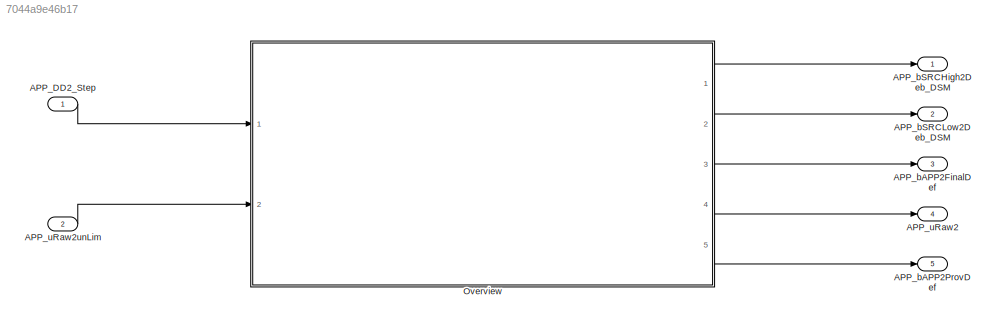
MODEL slx_7044a9e46b17
KIND model
CONFIG AbsTol = auto
CONFIG EnableMultiTasking = off
CONFIG FixedStep = 0.001
CONFIG MaxStep = auto
CONFIG MinStep = auto
CONFIG RelTol = 1e-3
CONFIG SampleTimeConstraint = Unconstrained
CONFIG SolverName = FixedStepDiscrete
CONFIG StartTime = 0.0
CONFIG StopTime = Inf
WORKSPACE source: mxarray member
WORKSPACE APP_DD2_DT = 10
BLOCK [Inport] APP_DD2_Step
  OutputFunctionCall = on
BLOCK [Outport] APP_bAPP2FinalDef
  Description = Status Sensor 2 of the acceleration pedal finally defect
  OutDataTypeStr = boolean
  OutMax = 1
  OutMin = 0
  Port = 3
  PortDimensions = [1 1]
BLOCK [Outport] APP_bAPP2ProvDef
  Description = Status Sensor 2 of the acceleration pedal temporary defect
  OutDataTypeStr = boolean
  OutMax = 1
  OutMin = 0
  Port = 5
  PortDimensions = [1 1]
BLOCK [Outport] APP_bSRCHigh2Deb_DSM
  Description = Status debounced SRC-High error Sensor 2
  OutDataTypeStr = boolean
  OutMax = 1
  OutMin = 0
  PortDimensions = [1 1]
BLOCK [Outport] APP_bSRCLow2Deb_DSM
  Description = Status debounced SRC-Low error Sensor 2
  OutDataTypeStr = boolean
  OutMax = 1
  OutMin = 0
  Port = 2
  PortDimensions = [1 1]
BLOCK [Outport] APP_uRaw2
  Description = Acceleration Pedal Position E
  OutDataTypeStr = Volt_mV1
  OutMax = 5000
  OutMin = 0
  Port = 4
  PortDimensions = [1 1]
  Unit = mv
BLOCK [Inport] APP_uRaw2unLim
  Description = Acceleration pedal sensor 2 unlimited raw value
  OutDataTypeStr = Volt_mV1
  OutMax = 5000
  OutMin = 0
  Port = 2
  PortDimensions = [1 1]
  Unit = mv
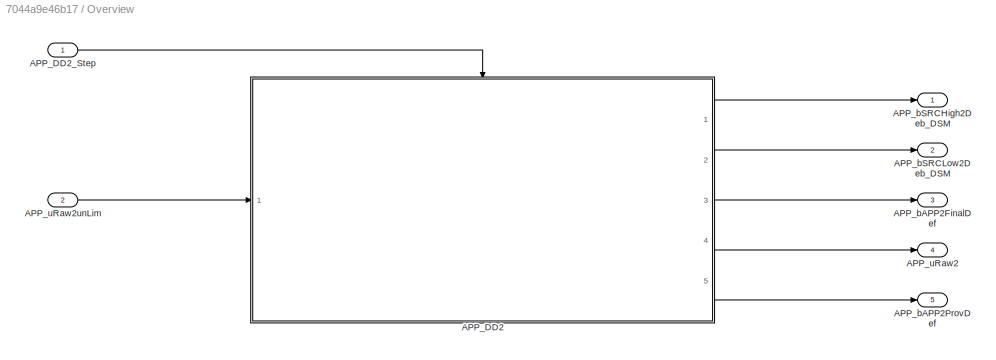
BLOCK [SubSystem] Overview
  Ports = [2, 5]
  RequestExecContextInheritance = off
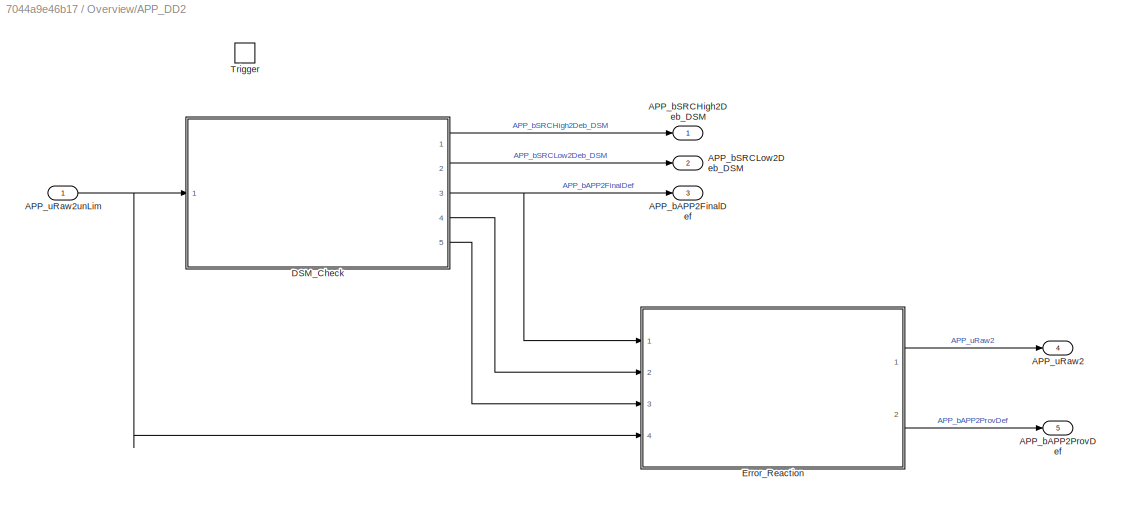
BLOCK [SubSystem] Overview/APP_DD2
  Ports = [1, 5, 0, 1]
  RequestExecContextInheritance = off
BLOCK [Outport] Overview/APP_DD2/APP_bAPP2FinalDef
  Port = 3
  VectorParamsAs1DForOutWhenUnconnected = off
BLOCK [Outport] Overview/APP_DD2/APP_bAPP2ProvDef
  Port = 5
  VectorParamsAs1DForOutWhenUnconnected = off
BLOCK [Outport] Overview/APP_DD2/APP_bSRCHigh2Deb_DSM
  VectorParamsAs1DForOutWhenUnconnected = off
BLOCK [Outport] Overview/APP_DD2/APP_bSRCLow2Deb_DSM
  Port = 2
  VectorParamsAs1DForOutWhenUnconnected = off
BLOCK [Outport] Overview/APP_DD2/APP_uRaw2
  Port = 4
  Tag = mv
  VectorParamsAs1DForOutWhenUnconnected = off
BLOCK [Inport] Overview/APP_DD2/APP_uRaw2unLim
  Tag = mv
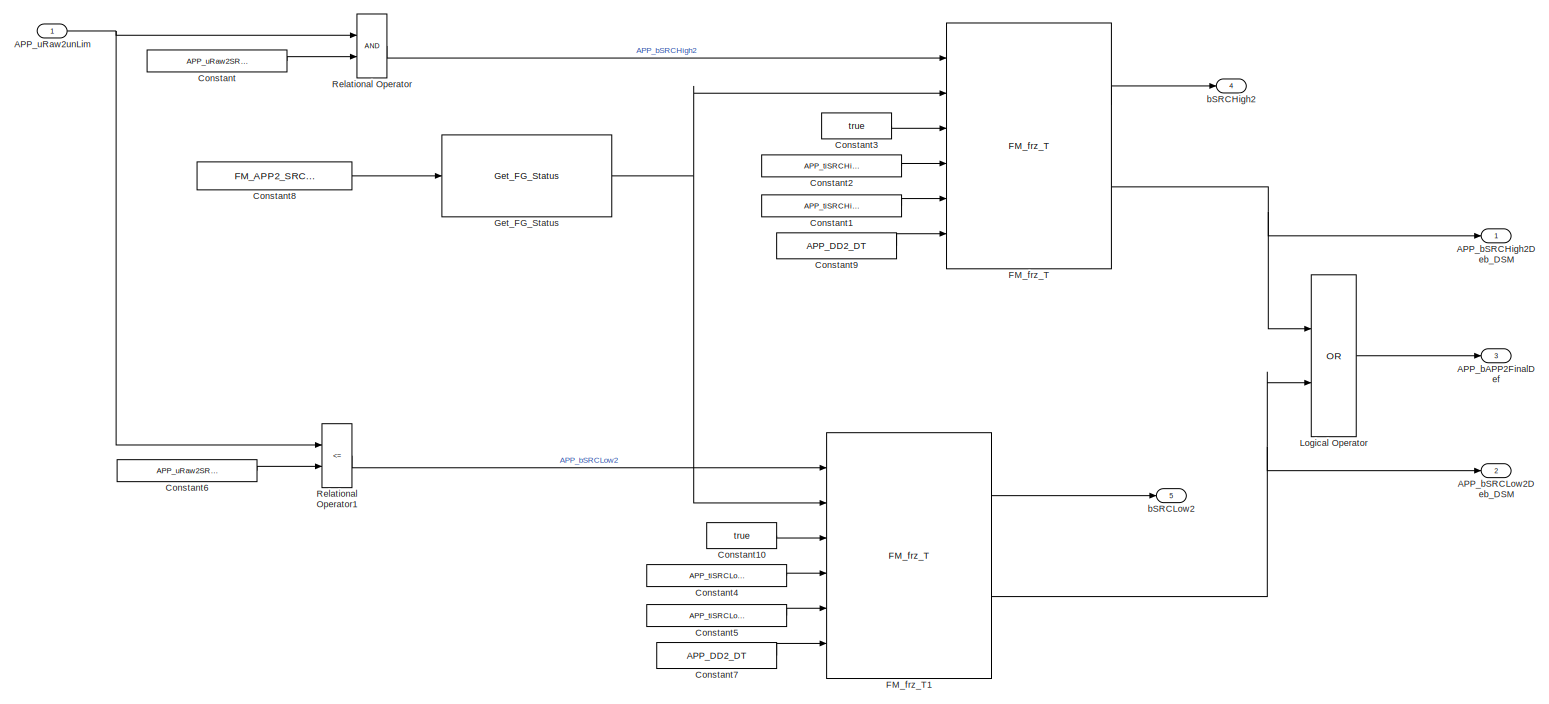
[diagram: Overview/APP_DD2/DSM_Check - part 1/1, most of the canvas]
BLOCK [SubSystem] Overview/APP_DD2/DSM_Check
  Ports = [1, 5]
  RequestExecContextInheritance = off
BLOCK [Outport] Overview/APP_DD2/DSM_Check/APP_bAPP2FinalDef
  Port = 3
  Tag = -
  VectorParamsAs1DForOutWhenUnconnected = off
BLOCK [Outport] Overview/APP_DD2/DSM_Check/APP_bSRCHigh2Deb_DSM
  Tag = -
  VectorParamsAs1DForOutWhenUnconnected = off
BLOCK [Outport] Overview/APP_DD2/DSM_Check/APP_bSRCLow2Deb_DSM
  Port = 2
  Tag = -
  VectorParamsAs1DForOutWhenUnconnected = off
BLOCK [Inport] Overview/APP_DD2/DSM_Check/APP_uRaw2unLim
  Tag = mv
BLOCK [Constant] Overview/APP_DD2/DSM_Check/Constant
  Value = APP_uRaw2SRCHigh_C
BLOCK [Constant] Overview/APP_DD2/DSM_Check/Constant1
  Value = APP_tiSRCHighOKDeb2_C
BLOCK [Constant] Overview/APP_DD2/DSM_Check/Constant10
  OutDataTypeStr = boolean
  Value = true
BLOCK [Constant] Overview/APP_DD2/DSM_Check/Constant2
  Value = APP_tiSRCHighDefDeb2_C
BLOCK [Constant] Overview/APP_DD2/DSM_Check/Constant3
  OutDataTypeStr = boolean
  Value = true
BLOCK [Constant] Overview/APP_DD2/DSM_Check/Constant4
  Value = APP_tiSRCLowDefDeb2_C
BLOCK [Constant] Overview/APP_DD2/DSM_Check/Constant5
  Value = APP_tiSRCLowOKDeb2_C
BLOCK [Constant] Overview/APP_DD2/DSM_Check/Constant6
  Value = APP_uRaw2SRCLow_C
BLOCK [Constant] Overview/APP_DD2/DSM_Check/Constant7
  OutDataTypeStr = Inherit: Inherit via back propagation
  Value = APP_DD2_DT
BLOCK [Constant] Overview/APP_DD2/DSM_Check/Constant8
  Value = FM_APP2_SRC_FG_CA
BLOCK [Constant] Overview/APP_DD2/DSM_Check/Constant9
  OutDataTypeStr = Inherit: Inherit via back propagation
  Value = APP_DD2_DT
BLOCK [Reference] Overview/APP_DD2/DSM_Check/FM_frz_T  REF=sllib/Fault Manager/FM_frz_T  (lib defined in slx_2b0aa6d284ff)
  Ports = [6, 2]
  SourceBlock = sllib/Fault Manager/FM_frz_T
  SourceProductName = sllib
  SourceType = FM_frz_T
BLOCK [Reference] Overview/APP_DD2/DSM_Check/FM_frz_T1  REF=sllib/Fault Manager/FM_frz_T  (lib defined in slx_2b0aa6d284ff)
  Ports = [6, 2]
  SourceBlock = sllib/Fault Manager/FM_frz_T
  SourceProductName = sllib
  SourceType = FM_frz_T
BLOCK [Reference] Overview/APP_DD2/DSM_Check/Get_FG_Status  REF=sllib/Fault Manager/Get_FG_Status  (lib defined in slx_2b0aa6d284ff)
  Ports = [1, 1]
  SourceBlock = sllib/Fault Manager/Get_FG_Status
  SourceProductName = sllib
  SourceType = Get_FG_Status
BLOCK [Logic] Overview/APP_DD2/DSM_Check/Logical Operator
  AllPortsSameDT = off
  Operator = OR
  OutDataTypeStr = boolean
  Ports = [2, 1]
BLOCK [RelationalOperator] Overview/APP_DD2/DSM_Check/Relational Operator
  OutDataTypeStr = boolean
  Ports = [2, 1]
BLOCK [RelationalOperator] Overview/APP_DD2/DSM_Check/Relational Operator1
  Operator = <=
  OutDataTypeStr = boolean
  Ports = [2, 1]
BLOCK [Outport] Overview/APP_DD2/DSM_Check/bSRCHigh2
  Port = 4
  VectorParamsAs1DForOutWhenUnconnected = off
BLOCK [Outport] Overview/APP_DD2/DSM_Check/bSRCLow2
  Port = 5
  VectorParamsAs1DForOutWhenUnconnected = off
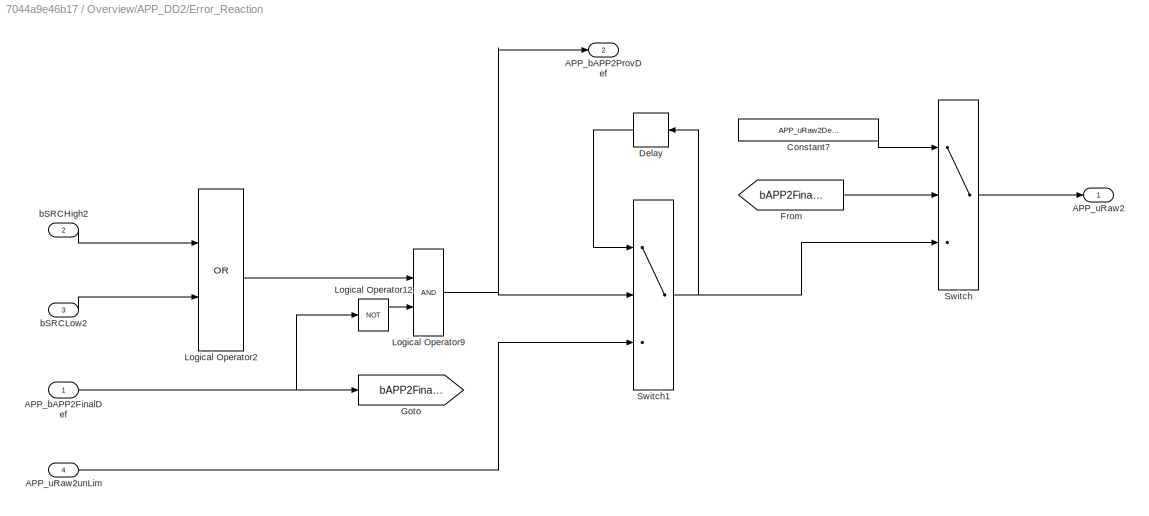
BLOCK [SubSystem] Overview/APP_DD2/Error_Reaction
  Ports = [4, 2]
  RequestExecContextInheritance = off
BLOCK [Inport] Overview/APP_DD2/Error_Reaction/APP_bAPP2FinalDef
BLOCK [Outport] Overview/APP_DD2/Error_Reaction/APP_bAPP2ProvDef
  Port = 2
  Tag = -
  VectorParamsAs1DForOutWhenUnconnected = off
BLOCK [Outport] Overview/APP_DD2/Error_Reaction/APP_uRaw2
  Tag = mv
  VectorParamsAs1DForOutWhenUnconnected = off
BLOCK [Inport] Overview/APP_DD2/Error_Reaction/APP_uRaw2unLim
  Port = 4
BLOCK [Constant] Overview/APP_DD2/Error_Reaction/Constant7
  Value = APP_uRaw2Def_C
BLOCK [Delay] Overview/APP_DD2/Error_Reaction/Delay
  DelayLength = 1
  InitialCondition = 0
  InputPortMap = u0
  Ports = [1, 1]
BLOCK [From] Overview/APP_DD2/Error_Reaction/From
  GotoTag = bAPP2FinalDef
BLOCK [Goto] Overview/APP_DD2/Error_Reaction/Goto
  GotoTag = bAPP2FinalDef
BLOCK [Logic] Overview/APP_DD2/Error_Reaction/Logical Operator12
  AllPortsSameDT = off
  Operator = NOT
  OutDataTypeStr = boolean
  Ports = [1, 1]
BLOCK [Logic] Overview/APP_DD2/Error_Reaction/Logical Operator2
  AllPortsSameDT = off
  Operator = OR
  OutDataTypeStr = boolean
  Ports = [2, 1]
BLOCK [Logic] Overview/APP_DD2/Error_Reaction/Logical Operator9
  AllPortsSameDT = off
  OutDataTypeStr = boolean
  Ports = [2, 1]
BLOCK [Switch] Overview/APP_DD2/Error_Reaction/Switch
  Criteria = u2 ~= 0
  InputSameDT = off
  SaturateOnIntegerOverflow = off
BLOCK [Switch] Overview/APP_DD2/Error_Reaction/Switch1
  Criteria = u2 ~= 0
  InputSameDT = off
  SaturateOnIntegerOverflow = off
BLOCK [Inport] Overview/APP_DD2/Error_Reaction/bSRCHigh2
  Port = 2
BLOCK [Inport] Overview/APP_DD2/Error_Reaction/bSRCLow2
  Port = 3
BLOCK [TriggerPort] Overview/APP_DD2/Trigger
  PortDimensions = 1
  Ports = []
  StatesWhenEnabling = held
  TriggerType = function-call
  VariantControl = Variant
BLOCK [Inport] Overview/APP_DD2_Step
BLOCK [Outport] Overview/APP_bAPP2FinalDef
  Port = 3
  VectorParamsAs1DForOutWhenUnconnected = off
BLOCK [Outport] Overview/APP_bAPP2ProvDef
  Port = 5
  VectorParamsAs1DForOutWhenUnconnected = off
BLOCK [Outport] Overview/APP_bSRCHigh2Deb_DSM
  VectorParamsAs1DForOutWhenUnconnected = off
BLOCK [Outport] Overview/APP_bSRCLow2Deb_DSM
  Port = 2
  VectorParamsAs1DForOutWhenUnconnected = off
BLOCK [Outport] Overview/APP_uRaw2
  Port = 4
  VectorParamsAs1DForOutWhenUnconnected = off
BLOCK [Inport] Overview/APP_uRaw2unLim
  Port = 2
LINE APP_DD2_Step:1 -> Overview:1
LINE APP_uRaw2unLim:1 -> Overview:2
NET Overview/APP_DD2/APP_uRaw2unLim:1 -> Overview/APP_DD2/DSM_Check:1, Overview/APP_DD2/Error_Reaction:4
NET Overview/APP_DD2/DSM_Check/APP_uRaw2unLim:1 -> Overview/APP_DD2/DSM_Check/Relational Operator1:1, Overview/APP_DD2/DSM_Check/Relational Operator:1
LINE Overview/APP_DD2/DSM_Check/Constant10:1 -> Overview/APP_DD2/DSM_Check/FM_frz_T1:3
LINE Overview/APP_DD2/DSM_Check/Constant1:1 -> Overview/APP_DD2/DSM_Check/FM_frz_T:5
LINE Overview/APP_DD2/DSM_Check/Constant2:1 -> Overview/APP_DD2/DSM_Check/FM_frz_T:4
LINE Overview/APP_DD2/DSM_Check/Constant3:1 -> Overview/APP_DD2/DSM_Check/FM_frz_T:3
LINE Overview/APP_DD2/DSM_Check/Constant4:1 -> Overview/APP_DD2/DSM_Check/FM_frz_T1:4
LINE Overview/APP_DD2/DSM_Check/Constant5:1 -> Overview/APP_DD2/DSM_Check/FM_frz_T1:5
LINE Overview/APP_DD2/DSM_Check/Constant6:1 -> Overview/APP_DD2/DSM_Check/Relational Operator1:2
LINE Overview/APP_DD2/DSM_Check/Constant7:1 -> Overview/APP_DD2/DSM_Check/FM_frz_T1:6
LINE Overview/APP_DD2/DSM_Check/Constant8:1 -> Overview/APP_DD2/DSM_Check/Get_FG_Status:1
LINE Overview/APP_DD2/DSM_Check/Constant9:1 -> Overview/APP_DD2/DSM_Check/FM_frz_T:6
LINE Overview/APP_DD2/DSM_Check/Constant:1 -> Overview/APP_DD2/DSM_Check/Relational Operator:2
LINE Overview/APP_DD2/DSM_Check/FM_frz_T1:1 -> Overview/APP_DD2/DSM_Check/bSRCLow2:1
NET Overview/APP_DD2/DSM_Check/FM_frz_T1:2 -> Overview/APP_DD2/DSM_Check/APP_bSRCLow2Deb_DSM:1, Overview/APP_DD2/DSM_Check/Logical Operator:2
LINE Overview/APP_DD2/DSM_Check/FM_frz_T:1 -> Overview/APP_DD2/DSM_Check/bSRCHigh2:1
NET Overview/APP_DD2/DSM_Check/FM_frz_T:2 -> Overview/APP_DD2/DSM_Check/APP_bSRCHigh2Deb_DSM:1, Overview/APP_DD2/DSM_Check/Logical Operator:1
NET Overview/APP_DD2/DSM_Check/Get_FG_Status:1 -> Overview/APP_DD2/DSM_Check/FM_frz_T1:2, Overview/APP_DD2/DSM_Check/FM_frz_T:2
LINE Overview/APP_DD2/DSM_Check/Logical Operator:1 -> Overview/APP_DD2/DSM_Check/APP_bAPP2FinalDef:1
LINE Overview/APP_DD2/DSM_Check/Relational Operator1:1 -> Overview/APP_DD2/DSM_Check/FM_frz_T1:1
LINE Overview/APP_DD2/DSM_Check/Relational Operator:1 -> Overview/APP_DD2/DSM_Check/FM_frz_T:1
LINE Overview/APP_DD2/DSM_Check:1 -> Overview/APP_DD2/APP_bSRCHigh2Deb_DSM:1
LINE Overview/APP_DD2/DSM_Check:2 -> Overview/APP_DD2/APP_bSRCLow2Deb_DSM:1
NET Overview/APP_DD2/DSM_Check:3 -> Overview/APP_DD2/APP_bAPP2FinalDef:1, Overview/APP_DD2/Error_Reaction:1
LINE Overview/APP_DD2/DSM_Check:4 -> Overview/APP_DD2/Error_Reaction:2
LINE Overview/APP_DD2/DSM_Check:5 -> Overview/APP_DD2/Error_Reaction:3
NET Overview/APP_DD2/Error_Reaction/APP_bAPP2FinalDef:1 -> Overview/APP_DD2/Error_Reaction/Goto:1, Overview/APP_DD2/Error_Reaction/Logical Operator12:1
LINE Overview/APP_DD2/Error_Reaction/APP_uRaw2unLim:1 -> Overview/APP_DD2/Error_Reaction/Switch1:3
LINE Overview/APP_DD2/Error_Reaction/Constant7:1 -> Overview/APP_DD2/Error_Reaction/Switch:1
LINE Overview/APP_DD2/Error_Reaction/Delay:1 -> Overview/APP_DD2/Error_Reaction/Switch1:1
LINE Overview/APP_DD2/Error_Reaction/From:1 -> Overview/APP_DD2/Error_Reaction/Switch:2
LINE Overview/APP_DD2/Error_Reaction/Logical Operator12:1 -> Overview/APP_DD2/Error_Reaction/Logical Operator9:2
LINE Overview/APP_DD2/Error_Reaction/Logical Operator2:1 -> Overview/APP_DD2/Error_Reaction/Logical Operator9:1
NET Overview/APP_DD2/Error_Reaction/Logical Operator9:1 -> Overview/APP_DD2/Error_Reaction/APP_bAPP2ProvDef:1, Overview/APP_DD2/Error_Reaction/Switch1:2
NET Overview/APP_DD2/Error_Reaction/Switch1:1 -> Overview/APP_DD2/Error_Reaction/Delay:1, Overview/APP_DD2/Error_Reaction/Switch:3
LINE Overview/APP_DD2/Error_Reaction/Switch:1 -> Overview/APP_DD2/Error_Reaction/APP_uRaw2:1
LINE Overview/APP_DD2/Error_Reaction/bSRCHigh2:1 -> Overview/APP_DD2/Error_Reaction/Logical Operator2:1
LINE Overview/APP_DD2/Error_Reaction/bSRCLow2:1 -> Overview/APP_DD2/Error_Reaction/Logical Operator2:2
LINE Overview/APP_DD2/Error_Reaction:1 -> Overview/APP_DD2/APP_uRaw2:1
LINE Overview/APP_DD2/Error_Reaction:2 -> Overview/APP_DD2/APP_bAPP2ProvDef:1
LINE Overview/APP_DD2:1 -> Overview/APP_bSRCHigh2Deb_DSM:1
LINE Overview/APP_DD2:2 -> Overview/APP_bSRCLow2Deb_DSM:1
LINE Overview/APP_DD2:3 -> Overview/APP_bAPP2FinalDef:1
LINE Overview/APP_DD2:4 -> Overview/APP_uRaw2:1
LINE Overview/APP_DD2:5 -> Overview/APP_bAPP2ProvDef:1
LINE Overview/APP_DD2_Step:1 -> Overview/APP_DD2:trigger
LINE Overview/APP_uRaw2unLim:1 -> Overview/APP_DD2:1
LINE Overview:1 -> APP_bSRCHigh2Deb_DSM:1
LINE Overview:2 -> APP_bSRCLow2Deb_DSM:1
LINE Overview:3 -> APP_bAPP2FinalDef:1
LINE Overview:4 -> APP_uRaw2:1
LINE Overview:5 -> APP_bAPP2ProvDef:1
note: NET lines group one-source signal fan-out (src -> all destinations, sorted); 1:1 wires keep LINE
